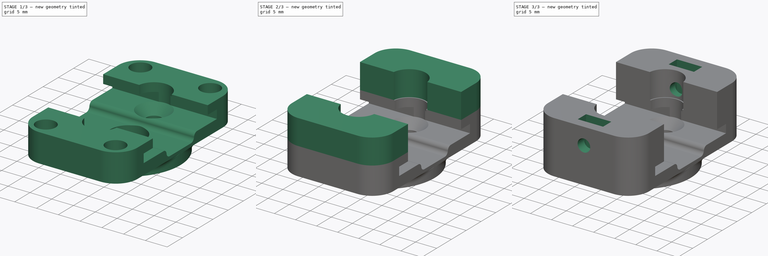
[diagram: build sequence overview — one tinted view per stage of 3, left to right]
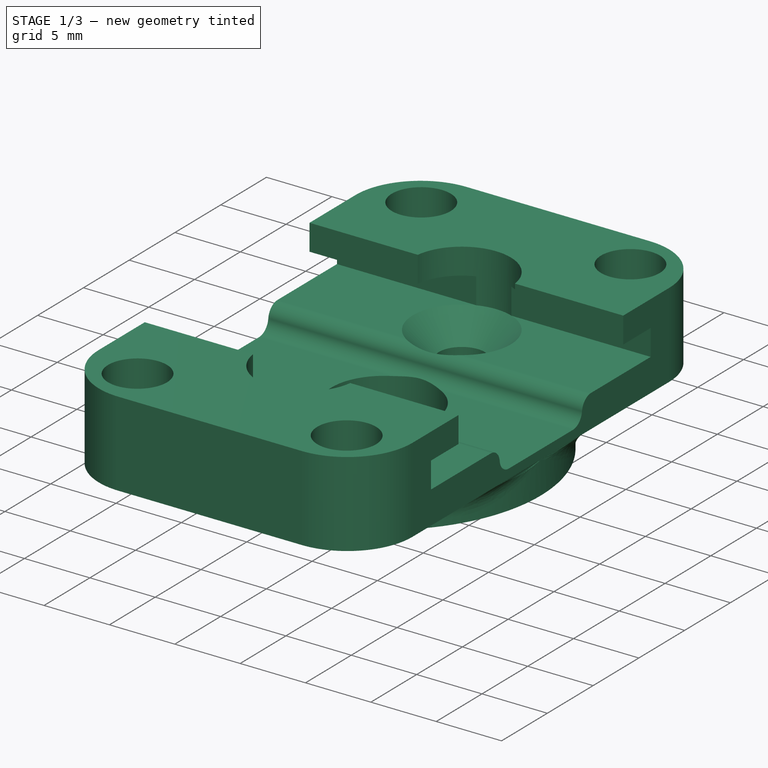
[diagram: stage 1 of 3 — iso view after this stage's code; geometry added in this stage tinted green]
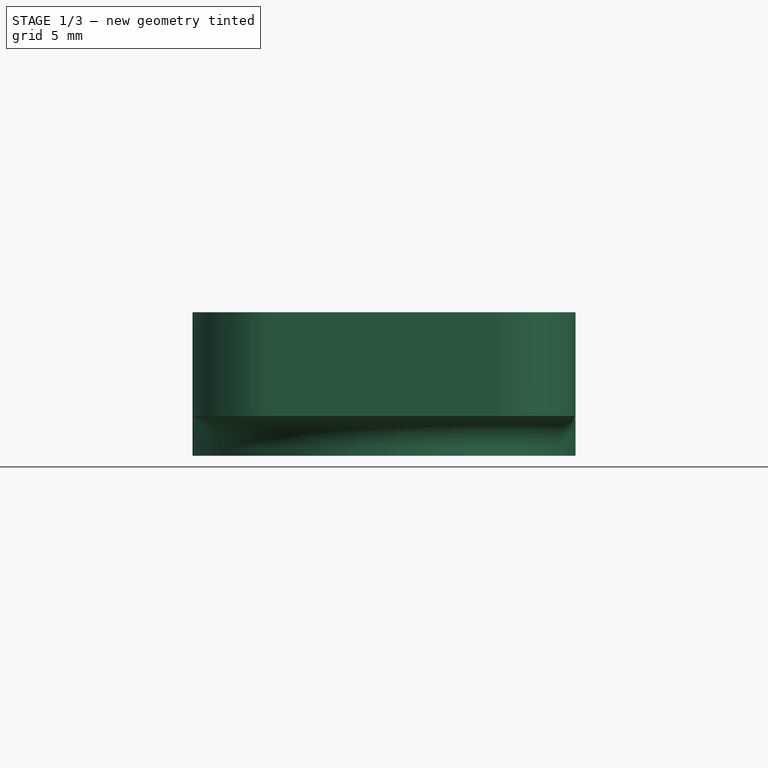
[diagram: stage 1 of 3 — front view after this stage's code; geometry added in this stage tinted green]
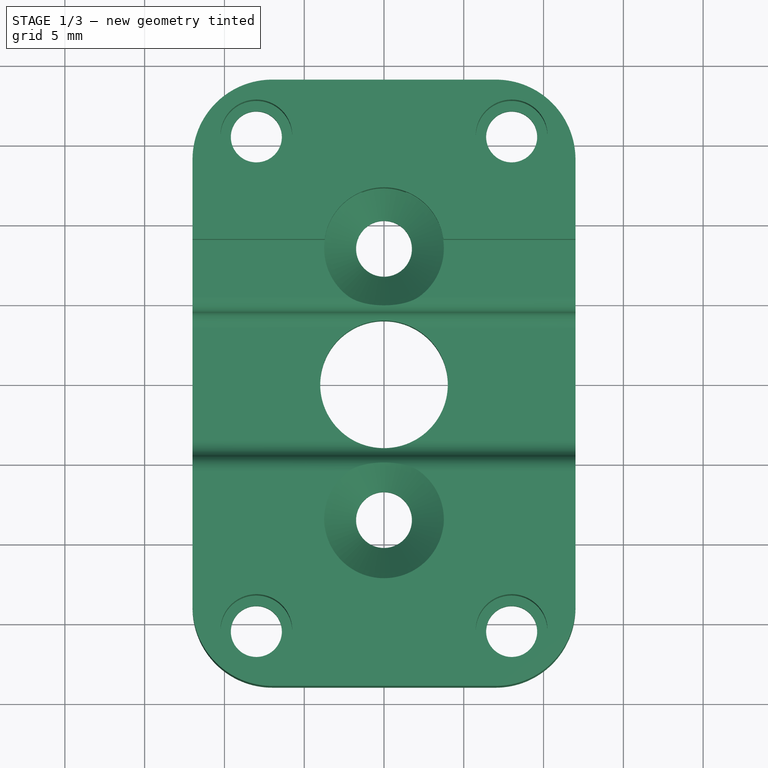
[diagram: stage 1 of 3 — top view after this stage's code; geometry added in this stage tinted green]
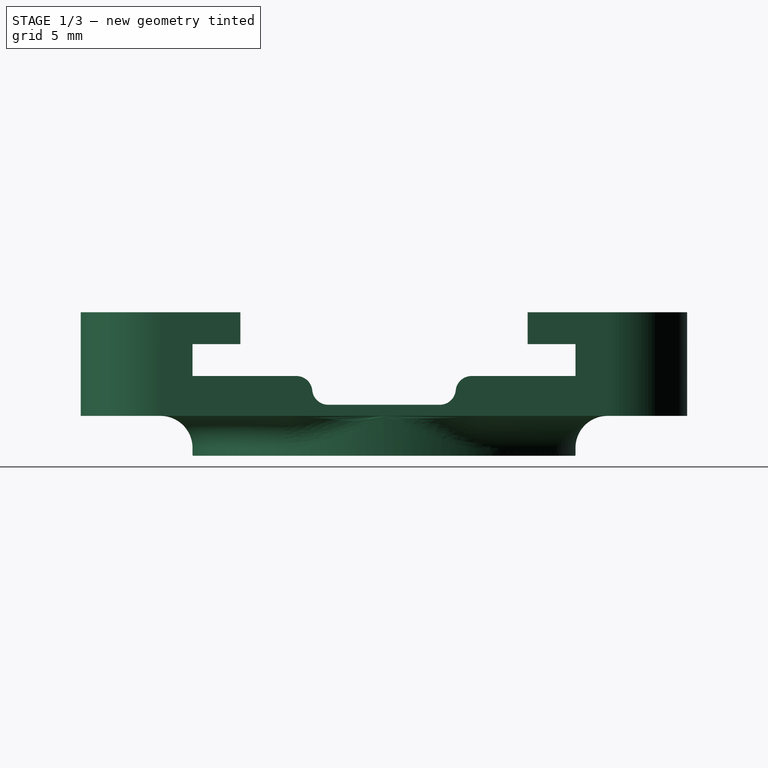
[diagram: stage 1 of 3 — right view after this stage's code; geometry added in this stage tinted green]
FCSTD DOCUMENT  (FreeCAD 0.21R33668 +26 (Git))
Label: Gripper_1_0
License: All rights reserved
LicenseURL: https://en.wikipedia.org/wiki/All_rights_reserved
objects: Sketcher::SketchObject×5, PartDesign::Pocket×4, Part::Feature×1, PartDesign::FeatureBase×1, PartDesign::Pad×1, PartDesign::Fillet×1, PartDesign::Body×1
note: 20 computed .brp shape members not serialized (recipe doc carries the construction recipe); baked Part::Feature solids carry a one-line shape summary decoded from their .brp

FEATURE [Part::Feature] Part__Feature  label="angle_sensor_holder_wrist v1"
  shape: bbox 28.61 x 38 x 9.92 mm, 61 faces (baked)
FEATURE [PartDesign::FeatureBase] BaseFeature
  BaseFeature = -> Part__Feature
FEATURE [Sketcher::SketchObject] Sketch
  ExternalGeometry = -> [BaseFeature]
  FullyConstrained = true
  MapMode = 5
  Placement = pos=(0,0,0) rot=(1,0,0;3.14159rad)
  Support = -> [BaseFeature]
  sketch-geometry (2):
    g0: Circle CenterX=0 CenterY=8.5 CenterZ=0 NormalX=0 NormalY=0 NormalZ=1 AngleXU=0 Radius=2.75
    g1: Circle CenterX=0 CenterY=-8.5 CenterZ=0 NormalX=0 NormalY=0 NormalZ=1 AngleXU=0 Radius=2.75
  constraints (7):
    c: Coincident(g0,g-3)
    c: Coincident(g1,g-4)
    c: Diameter(g-3) = 3.5
    c: Diameter(g0) = 5.5
    c: DistanceY(g-1,g0) = 8.5
    c: Equal(g1,g0)
    c: Diameter(g-5) = 24
FEATURE [PartDesign::Pocket] Pocket
  BaseFeature = -> BaseFeature
  Direction = (0,0,1)
  Length = 2
  Length2 = 5
  Profile = -> Sketch
  ReferenceAxis = -> Sketch [N_Axis]
  Type = 0
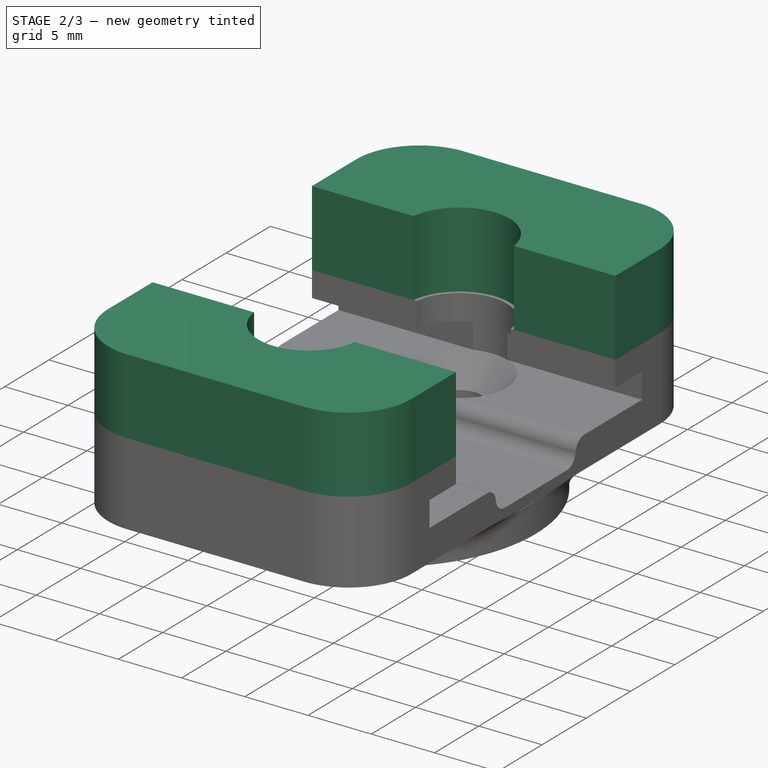
[diagram: stage 2 of 3 — iso view after this stage's code; geometry added in this stage tinted green]
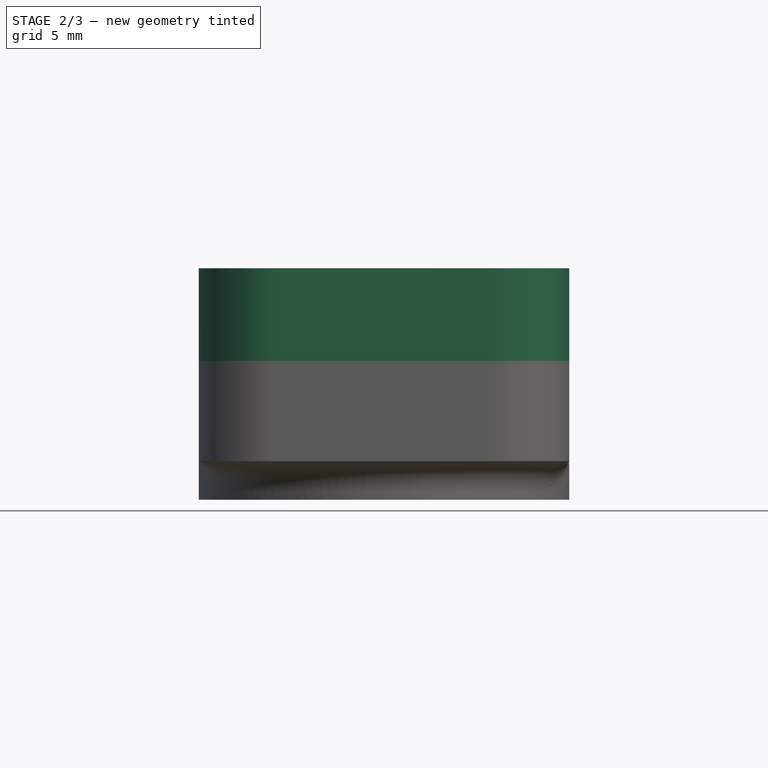
[diagram: stage 2 of 3 — front view after this stage's code; geometry added in this stage tinted green]
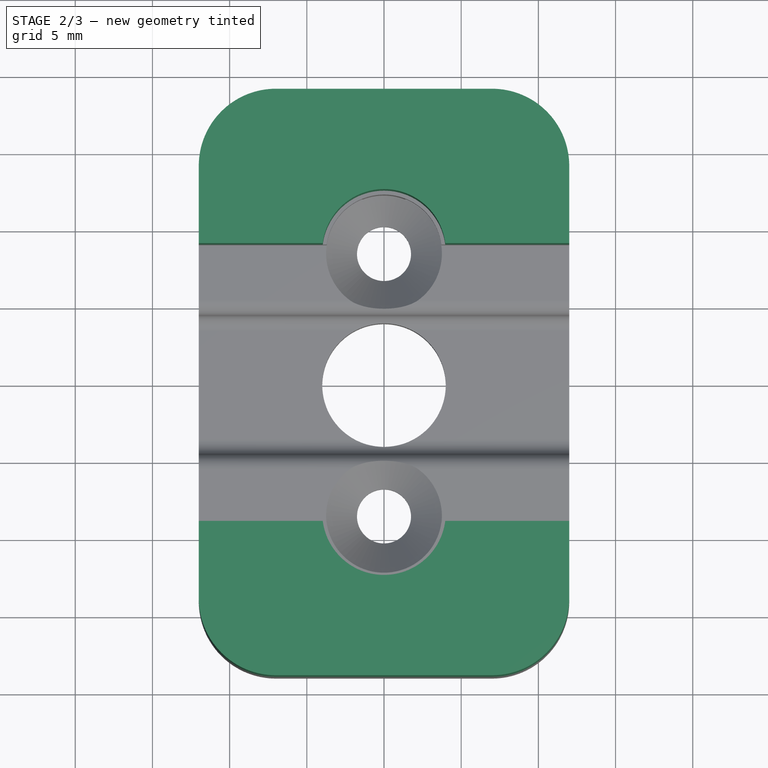
[diagram: stage 2 of 3 — top view after this stage's code; geometry added in this stage tinted green]
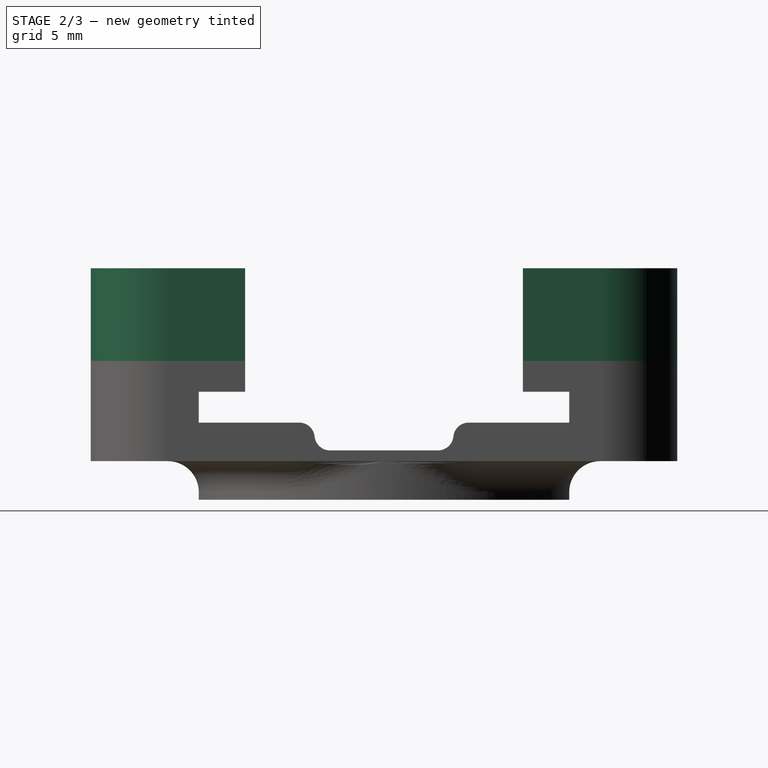
[diagram: stage 2 of 3 — right view after this stage's code; geometry added in this stage tinted green]
FEATURE [Sketcher::SketchObject] Sketch001
  ExternalGeometry = -> [Pocket]
  FullyConstrained = true
  MapMode = 5
  Placement = pos=(0,-2e-16,2.5) rot=(1,0,0;3.14159rad)
  Support = -> [Pocket]
  sketch-geometry (4):
    g0: Circle CenterX=-8 CenterY=15.5 CenterZ=0 NormalX=0 NormalY=0 NormalZ=1 AngleXU=0 Radius=2.75
    g1: Circle CenterX=8 CenterY=15.5 CenterZ=0 NormalX=0 NormalY=0 NormalZ=1 AngleXU=0 Radius=2.75
    g2: Circle CenterX=8 CenterY=-15.5 CenterZ=0 NormalX=0 NormalY=0 NormalZ=1 AngleXU=0 Radius=2.75
    g3: Circle CenterX=-8 CenterY=-15.5 CenterZ=0 NormalX=0 NormalY=0 NormalZ=1 AngleXU=0 Radius=2.75
  constraints (9):
    c: Coincident(g0,g-3)
    c: Coincident(g1,g-4)
    c: Coincident(g2,g-5)
    c: Coincident(g3,g-6)
    c: Equal(g0,g1)
    c: Equal(g3,g2)
    c: Equal(g2,g1)
    c: Diameter(g1) = 5.5
    c: Diameter(g-5) = 3.2
FEATURE [PartDesign::Pocket] Pocket001
  BaseFeature = -> Pocket
  Direction = (0,-1e-16,1)
  Length = 3
  Length2 = 5
  Profile = -> Sketch001
  ReferenceAxis = -> Sketch001 [N_Axis]
  Type = 0
FEATURE [Sketcher::SketchObject] Sketch002
  ExternalGeometry = -> [Pocket001]
  FullyConstrained = false
  MapMode = 5
  Placement = pos=(0,0,9) rot=(0,0,1;0rad)
  Support = -> [Pocket001]
  sketch-geometry (12):
    g0: LineSegment StartX=-12 StartY=19 StartZ=0 EndX=12 EndY=19 EndZ=0
    g1: LineSegment StartX=12 StartY=19 StartZ=0 EndX=12 EndY=9 EndZ=0
    g2: LineSegment StartX=12 StartY=-19 StartZ=0 EndX=-12 EndY=-19 EndZ=0
    g3: LineSegment StartX=-12 StartY=-19 StartZ=0 EndX=-12 EndY=-9 EndZ=0
    g4: LineSegment StartX=-12 StartY=-9 StartZ=0 EndX=-3.96863 EndY=-9 EndZ=0
    g5: LineSegment StartX=3.96863 StartY=-9 StartZ=0 EndX=12 EndY=-9 EndZ=0
    g6: LineSegment StartX=-3.96863 StartY=9 StartZ=0 EndX=-12 EndY=9 EndZ=0
    g7: LineSegment StartX=3.96863 StartY=9 StartZ=0 EndX=12 EndY=9 EndZ=0
    g8: ArcOfCircle CenterX=0 CenterY=8.5 CenterZ=0 NormalX=0 NormalY=0 NormalZ=1 AngleXU=0 Radius=4 StartAngle=0.125328 EndAngle=3.01626
    g9: ArcOfCircle CenterX=0 CenterY=-8.5 CenterZ=0 NormalX=0 NormalY=0 NormalZ=1 AngleXU=0 Radius=4 StartAngle=3.26692 EndAngle=6.15786
    g10: LineSegment StartX=-12 StartY=9 StartZ=0 EndX=-12 EndY=19 EndZ=0
    g11: LineSegment StartX=12 StartY=-9 StartZ=0 EndX=12 EndY=-19 EndZ=0
  constraints (28):
    c: Coincident(g0,g1)
    c: Coincident(g11,g2)
    c: Coincident(g2,g3)
    c: Coincident(g10,g0)
    c: Horizontal(g0)
    c: Horizontal(g2)
    c: Vertical(g1)
    c: Vertical(g3)
    c: Vertical(g-7,g0)
    c: Vertical(g-8,g0)
    c: Horizontal(g0,g-3)
    c: Horizontal(g2,g-4)
    c: Coincident(g4,g-9)
    c: Coincident(g5,g-10)
    c: Coincident(g6,g-8)
    c: Coincident(g7,g-7)
    c: Coincident(g8,g-11)
    c: Diameter(g8) = 8
    c: Coincident(g9,g-12)
    c: Diameter(g9) = 8
    c: Coincident(g8,g6)
    c: Coincident(g8,g7)
    c: Coincident(g9,g5)
    c: Coincident(g4,g9)
    c: PointOnObject(g3,g4)
    c: PointOnObject(g10,g6)
    c: PointOnObject(g1,g7)
    c: PointOnObject(g11,g5)
FEATURE [PartDesign::Pad] Pad
  BaseFeature = -> Pocket001
  Direction = (0,0,1)
  Length = 6
  Length2 = 10
  Profile = -> Sketch002
  ReferenceAxis = -> Sketch002 [N_Axis]
  Type = 0
FEATURE [PartDesign::Fillet] Fillet
  Base = -> Pad [Edge143,Edge89,Edge105,Edge118]
  BaseFeature = -> Pad
  Radius = 5
  SupportTransform = false
  UseAllEdges = false
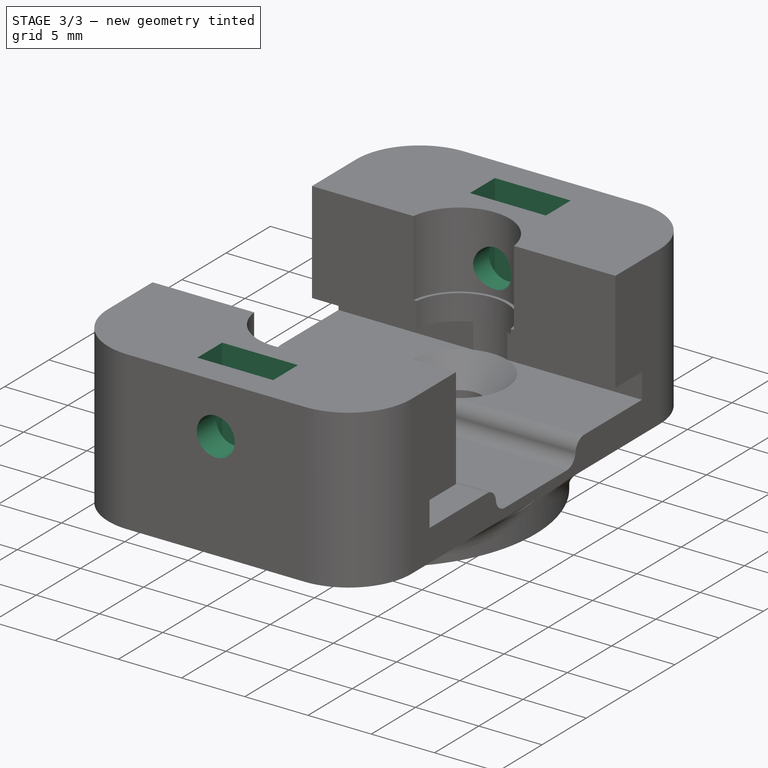
[diagram: stage 3 of 3 — iso view after this stage's code; geometry added in this stage tinted green]
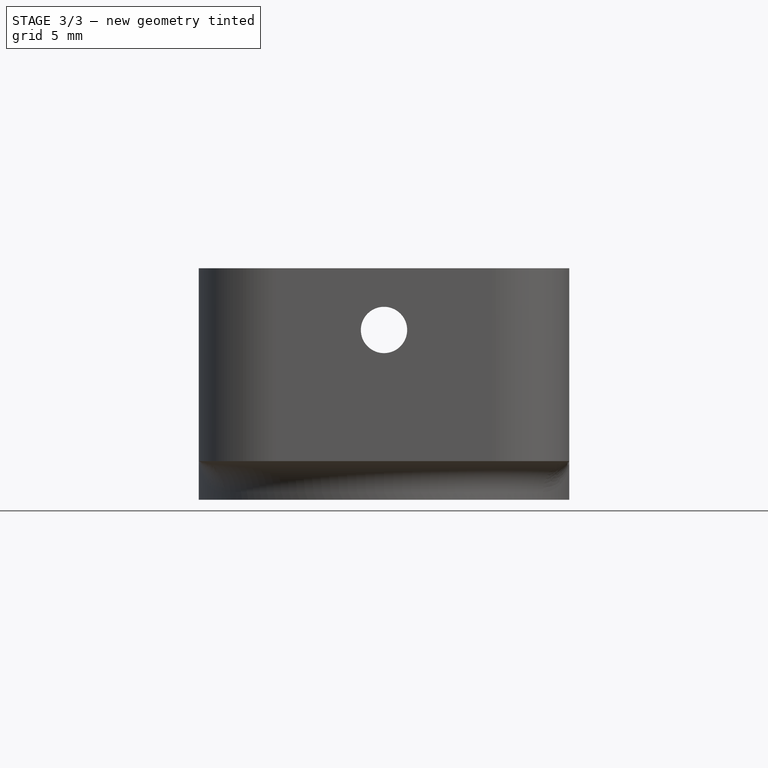
[diagram: stage 3 of 3 — front view after this stage's code; geometry added in this stage tinted green]
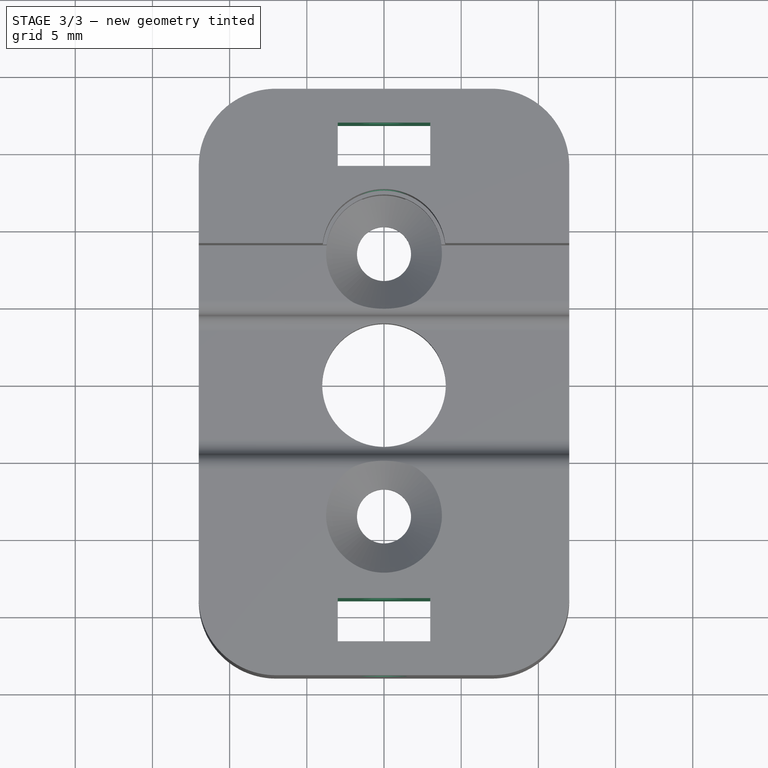
[diagram: stage 3 of 3 — top view after this stage's code; geometry added in this stage tinted green]
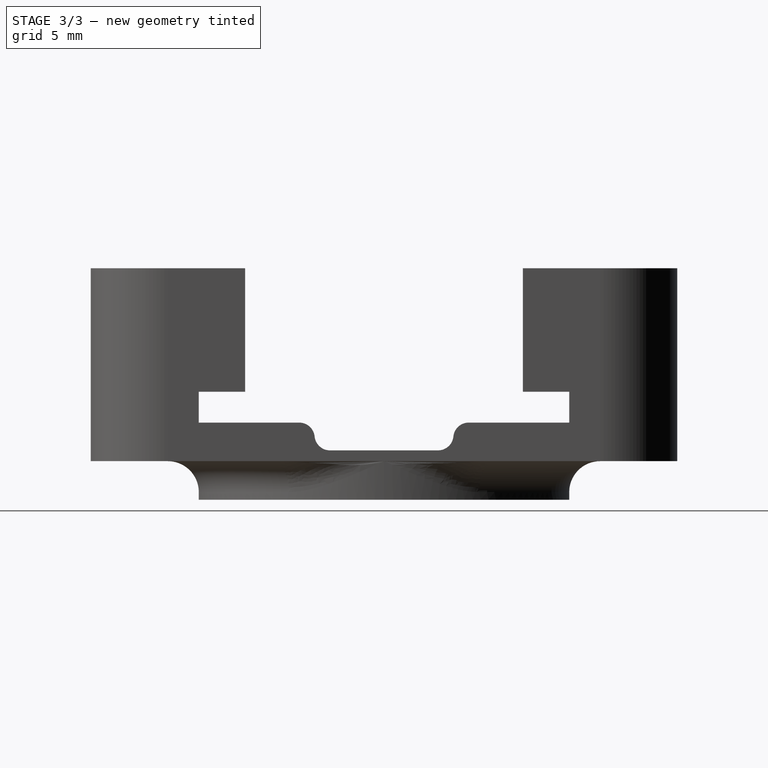
[diagram: stage 3 of 3 — right view after this stage's code; geometry added in this stage tinted green]
FEATURE [Sketcher::SketchObject] Sketch003
  ExternalGeometry = -> [Fillet]
  FullyConstrained = true
  MapMode = 5
  Placement = pos=(0,-19,0) rot=(1,0,0;1.5708rad)
  Support = -> [Fillet]
  sketch-geometry (1):
    g0: Circle CenterX=0 CenterY=11 CenterZ=0 NormalX=0 NormalY=0 NormalZ=1 AngleXU=0 Radius=1.5
  constraints (3):
    c: PointOnObject(g0,g-2)
    c: Diameter(g0) = 3
    c: DistanceY(g0,g-3) = 4
FEATURE [PartDesign::Pocket] Pocket002
  BaseFeature = -> Fillet
  Direction = (0,1,-2e-16)
  Length = 5
  Length2 = 5
  Profile = -> Sketch003
  ReferenceAxis = -> Sketch003 [N_Axis]
  Type = 1
FEATURE [Sketcher::SketchObject] Sketch004
  FullyConstrained = true
  MapMode = 5
  Placement = pos=(0,0,15) rot=(0,0,1;0rad)
  Support = -> [Pocket002]
  sketch-geometry (8):
    g0: LineSegment StartX=-3 StartY=16.8 StartZ=0 EndX=3 EndY=16.8 EndZ=0
    g1: LineSegment StartX=3 StartY=16.8 StartZ=0 EndX=3 EndY=14 EndZ=0
    g2: LineSegment StartX=3 StartY=14 StartZ=0 EndX=-3 EndY=14 EndZ=0
    g3: LineSegment StartX=-3 StartY=14 StartZ=0 EndX=-3 EndY=16.8 EndZ=0
    g4: LineSegment StartX=-3 StartY=-14 StartZ=0 EndX=3 EndY=-14 EndZ=0
    g5: LineSegment StartX=3 StartY=-14 StartZ=0 EndX=3 EndY=-16.8 EndZ=0
    g6: LineSegment StartX=3 StartY=-16.8 StartZ=0 EndX=-3 EndY=-16.8 EndZ=0
    g7: LineSegment StartX=-3 StartY=-16.8 StartZ=0 EndX=-3 EndY=-14 EndZ=0
  constraints (24):
    c: Coincident(g0,g1)
    c: Coincident(g1,g2)
    c: Coincident(g2,g3)
    c: Coincident(g3,g0)
    c: Horizontal(g0)
    c: Horizontal(g2)
    c: Vertical(g1)
    c: Vertical(g3)
    c: Coincident(g4,g5)
    c: Coincident(g5,g6)
    c: Coincident(g6,g7)
    c: Coincident(g7,g4)
    c: Horizontal(g4)
    c: Horizontal(g6)
    c: Vertical(g5)
    c: Vertical(g7)
    c: Vertical(g1,g4)
    c: Vertical(g2,g4)
    c: DistanceX(g0,g0) = 6
    c: DistanceY(g1,g1) = 2.8
    c: DistanceY(g5,g5) = 2.8
    c: DistanceX(g-1,g1) = 3
    c: DistanceY(g-1,g1) = 14
    c: DistanceY(g4,g-1) = 14
FEATURE [PartDesign::Pocket] Pocket003
  BaseFeature = -> Pocket002
  Direction = (0,0,-1)
  Length = 5
  Length2 = 5
  Profile = -> Sketch004
  ReferenceAxis = -> Sketch004 [N_Axis]
  Type = 1
FEATURE [PartDesign::Body] Body
  BaseFeature = -> Part__Feature
  Group = -> [BaseFeature,Sketch,Pocket,Sketch001,Pocket001,Sketch002,Pad,Fillet,Sketch003,Pocket002,Sketch004,Pocket003]
  Origin = -> Origin
  Tip = -> Pocket003
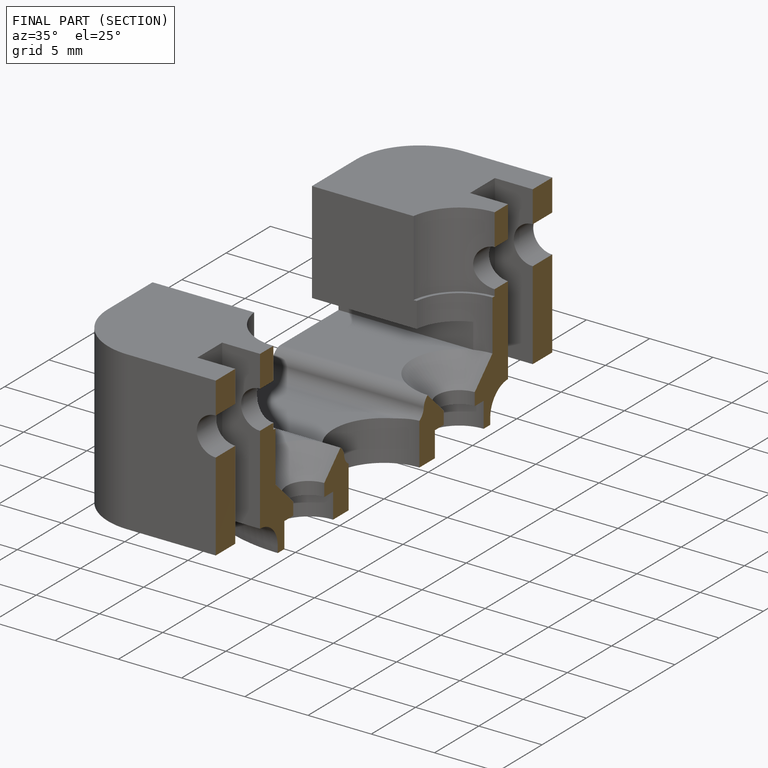
[diagram: finished part — half-section view (interior)]
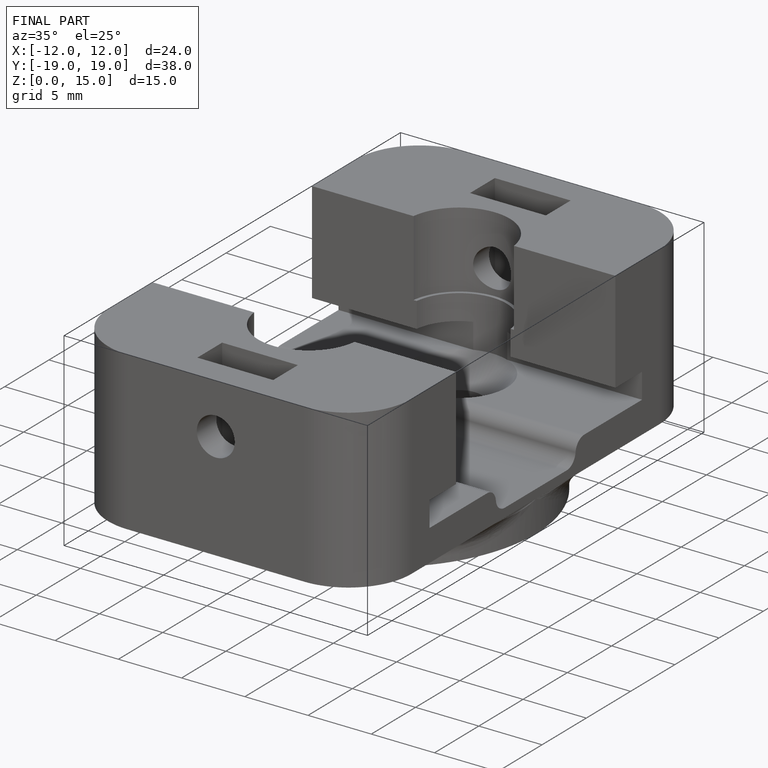
[diagram: finished part — iso view with bounding-box wireframe]
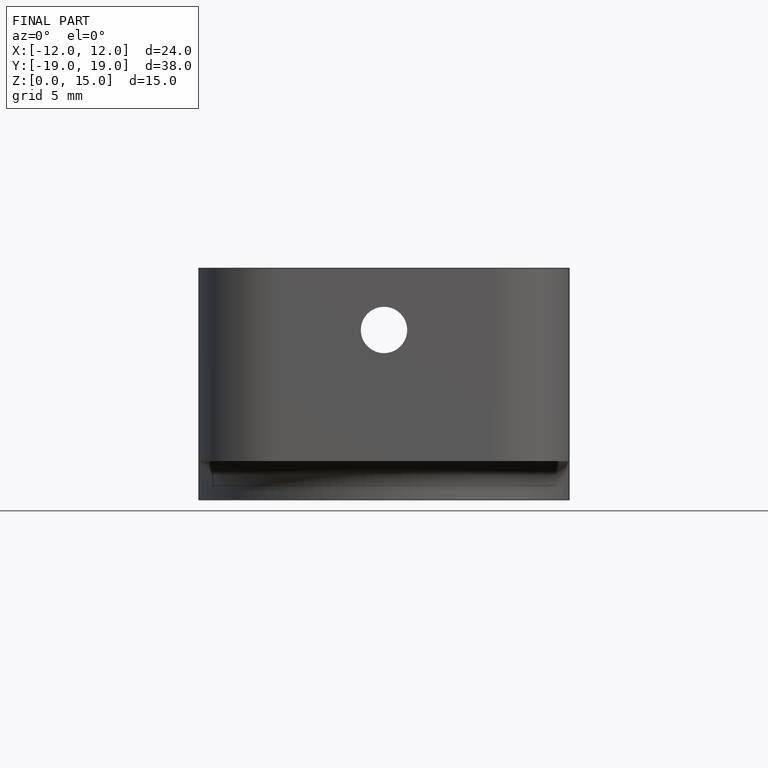
[diagram: finished part — front view with bounding-box wireframe]
